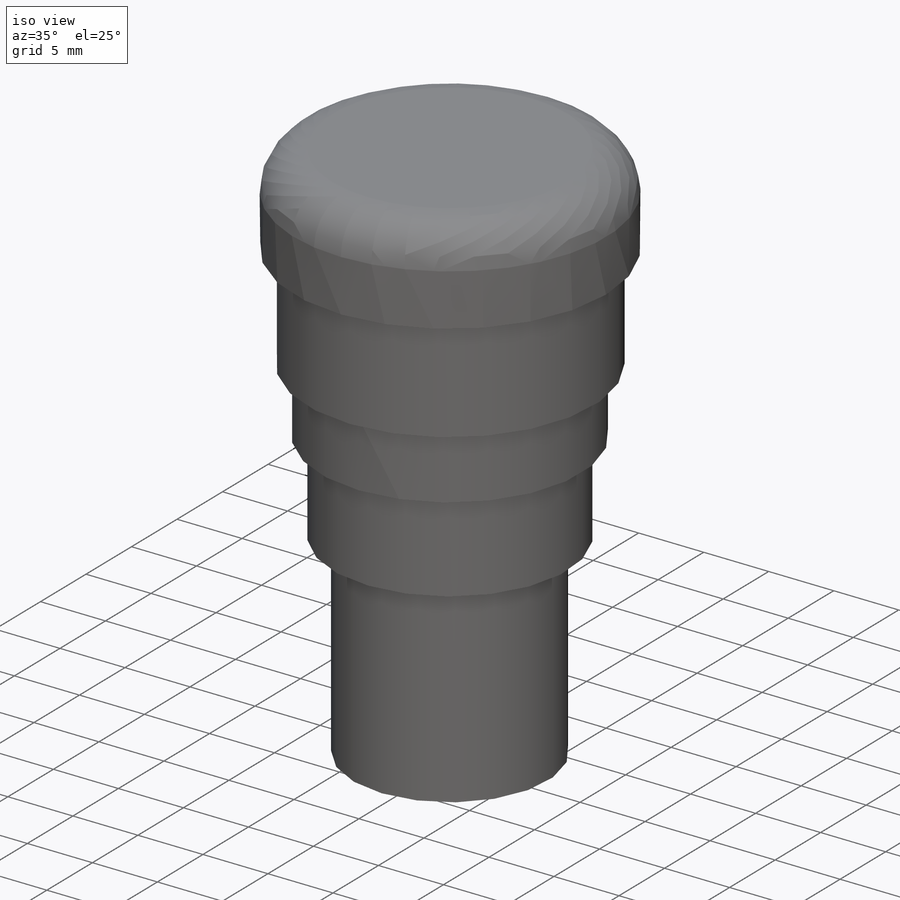
[diagram: iso view]
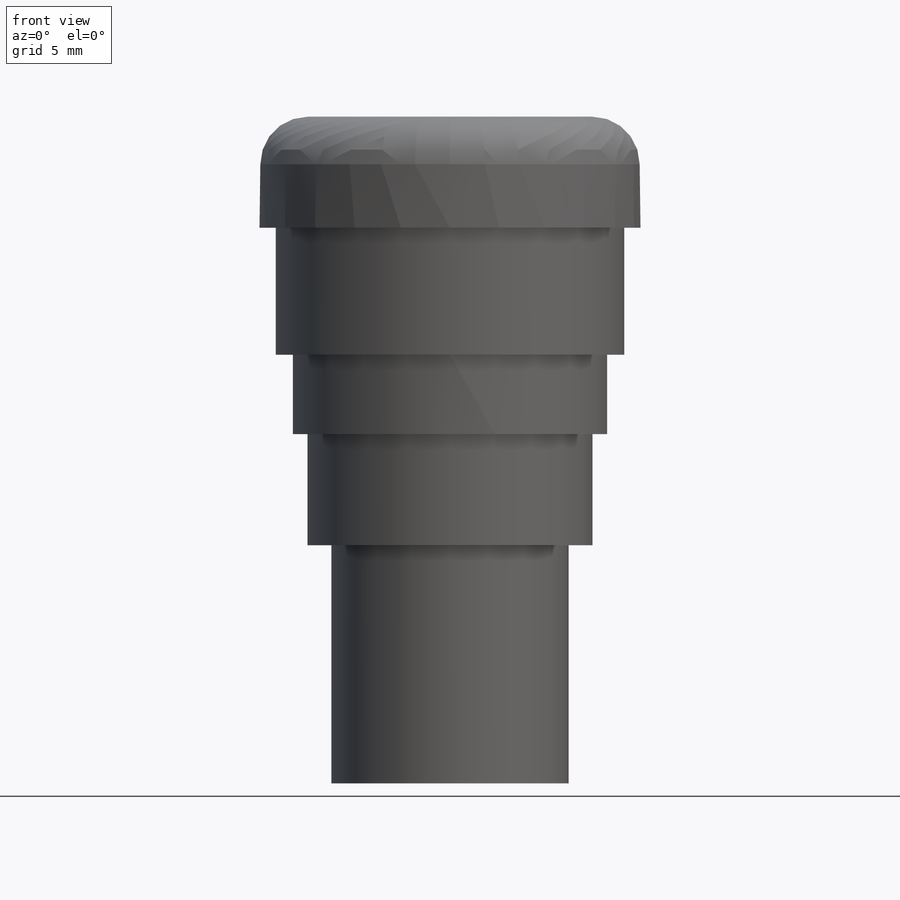
[diagram: front view]
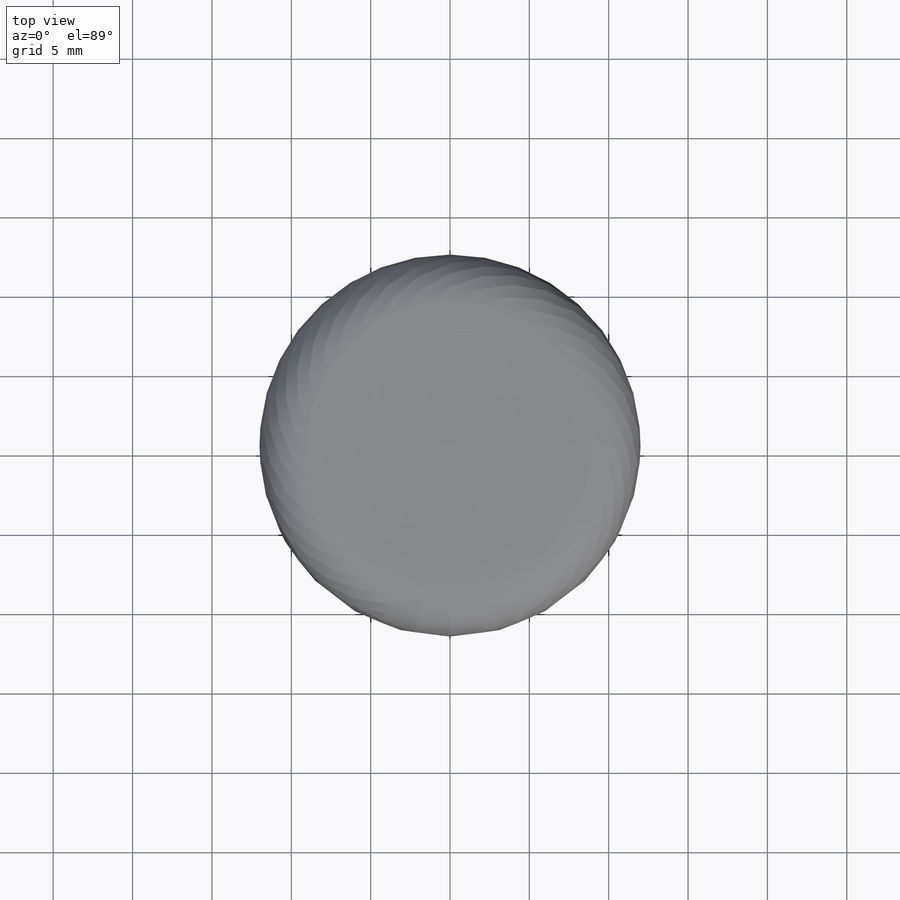
[diagram: top view]
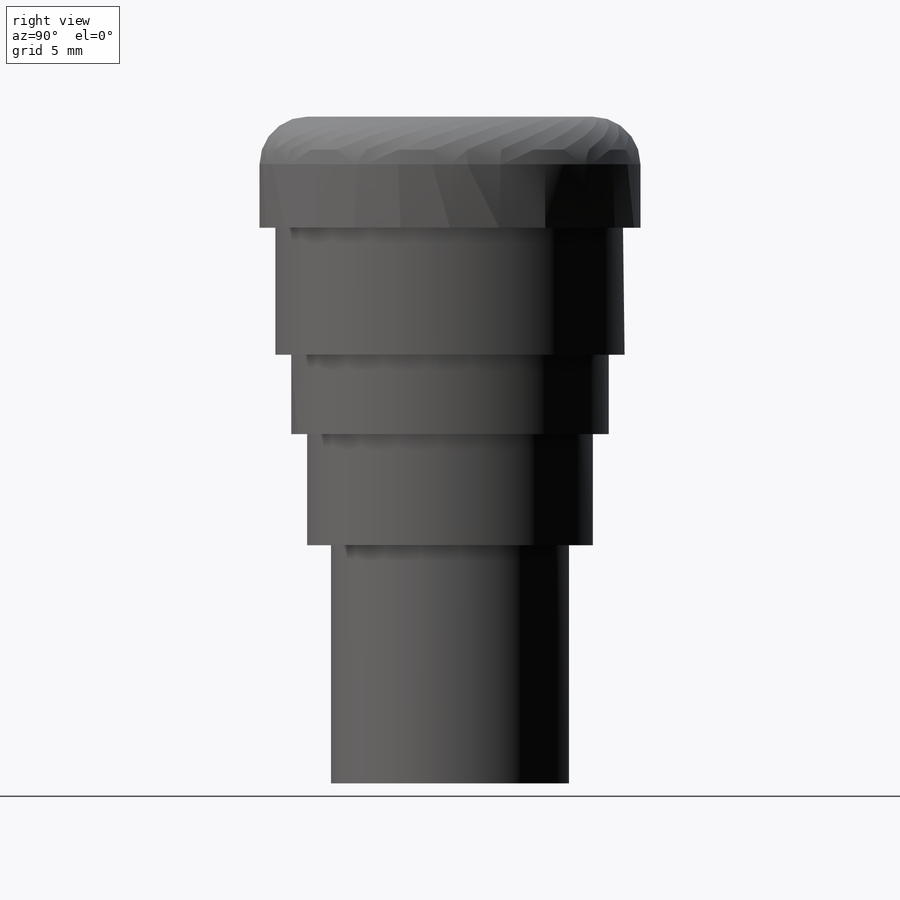
[diagram: right view]
SOLIDWORKS PART (.sldprt)
format: sldprt  version: not decoded by parser v0  size: 177,664 bytes
history: native  units: mm
features: sketch x5, extrude x5, plane x3, material x1, fillet x1 (+11 scaffold rows collapsed)
feature tree (26):
  scaffold x11  (default folders/planes/origin — collapsed)
  material  "Matériau <non spécifié>"
  plane  "Face"
  plane  "Dessus"
  plane  "Droite"
  sketch  "Esquisse1"  dims[D1=24.0mm]
  extrude  "Extrusion1"  Depth=7mm
  sketch  "Esquisse2"  dims[D1=22.0mm]
  extrude  "Extrusion2"  Depth=8mm
  fillet  "Congé1"  Radius=3mm
  sketch  "Esquisse3"  dims[D1=20.0mm]
  extrude  "Extrusion3"  Depth=5mm
  sketch  "Esquisse4"  dims[D1=18.0mm]
  extrude  "Extrusion4"  Depth=7mm
  sketch  "Esquisse5"  dims[D1=15.0mm]
  extrude  "Extrusion5"  Depth=15mm
decode coverage: 11 of 11 modeling features carry decoded parameters
note: suppression state not decoded; provenance and decode notes live in map.json
